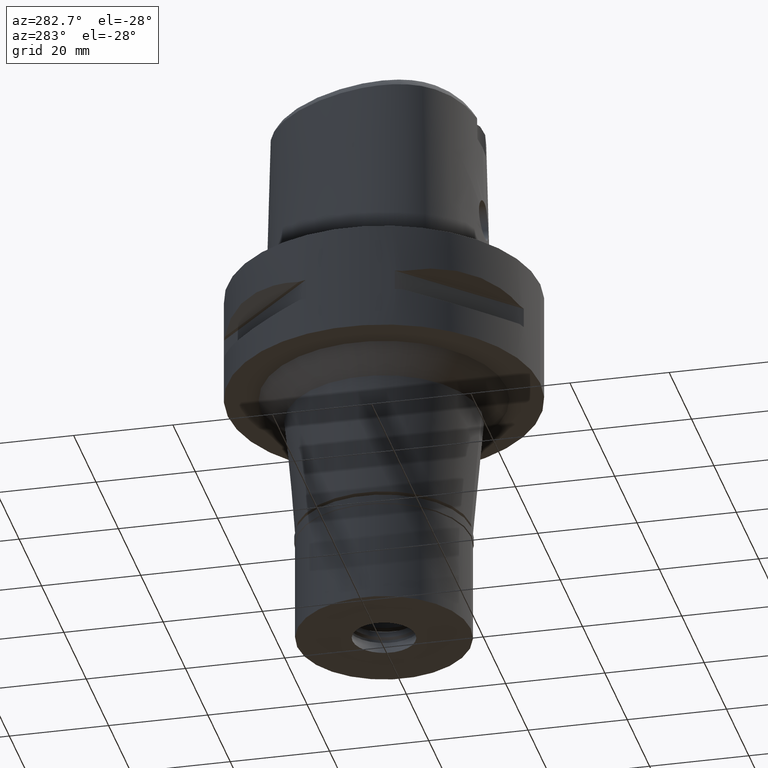
[diagram: clean part render]
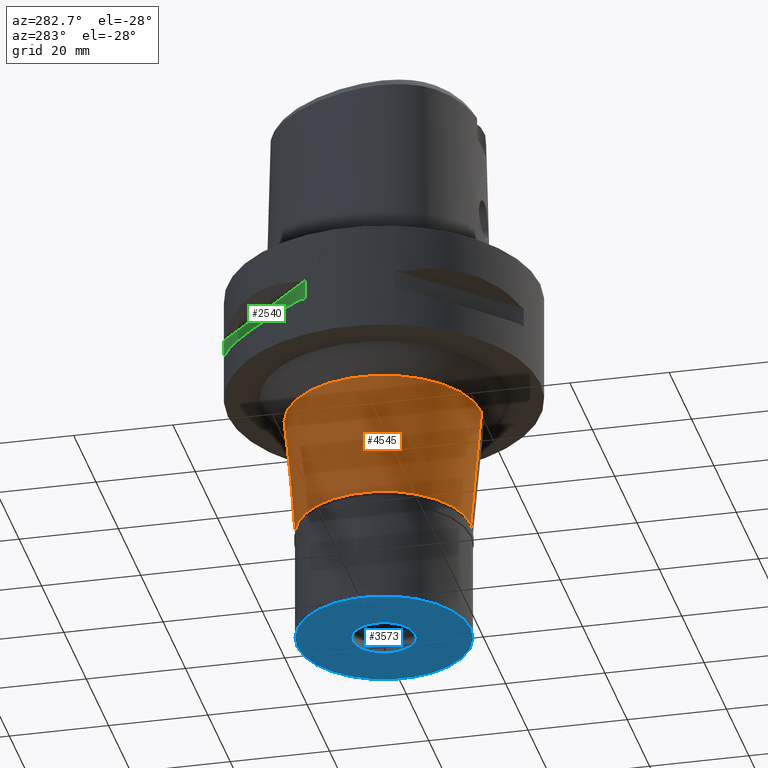
[diagram: same view with three faces highlighted in distinct colors, each labeled with its STEP entity id]
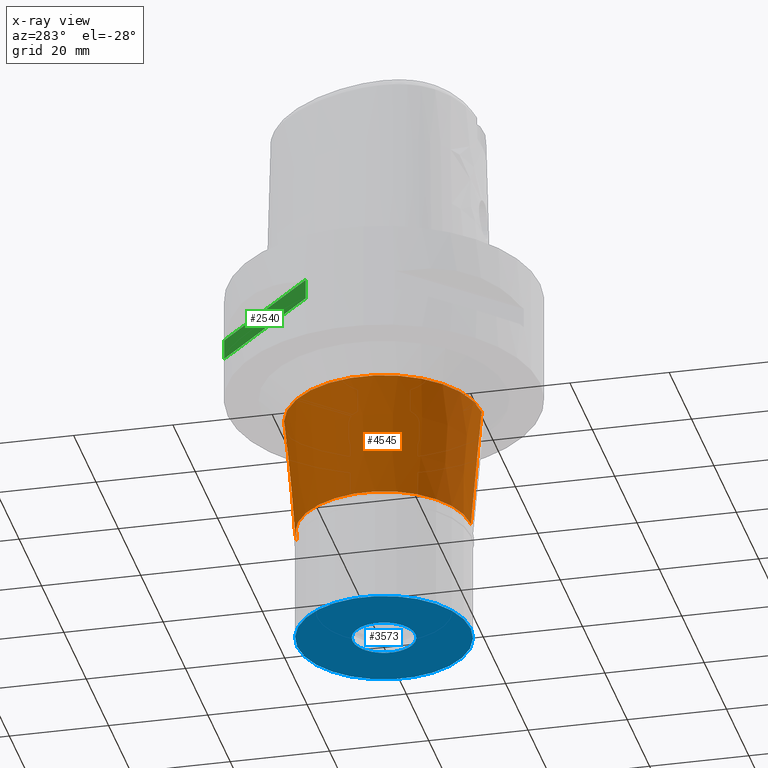
[diagram: x-ray of the same camera — body ghosted, the three highlighted faces saturated]
A machine part, auxiliary view with three faces highlighted in distinct colors.
The next image is the same camera in x-ray (body ghosted, the three faces saturated) — at least one of them is partly hidden behind the body in this view.
Their STEP definitions:

[orange] entity #4545 — the highlighted conical surface has half-angle 5 deg.
#21 = CARTESIAN_POINT ( 'NONE',  ( 0.0000000000000000000, 0.0000000000000000000, -51.70000000000000284 ) ) ;
#23 = FACE_OUTER_BOUND ( 'NONE', #1081, .T. ) ;
#117 = DIRECTION ( 'NONE',  ( 0.0000000000000000000, 0.0000000000000000000, -1.000000000000000000 ) ) ;
#134 = VERTEX_POINT ( 'NONE', #4239 ) ;
#261 = VECTOR ( 'NONE', #1185, 1000.000000000000000 ) ;
#509 = CIRCLE ( 'NONE', #2712, 19.66096998909000249 ) ;
#510 = VECTOR ( 'NONE', #2883, 1000.000000000000000 ) ;
#686 = CARTESIAN_POINT ( 'NONE',  ( 0.0000000000000000000, 19.66096998909000249, -27.00000000000000000 ) ) ;
#763 = ORIENTED_EDGE ( 'NONE', *, *, #4696, .T. ) ;
#875 = VERTEX_POINT ( 'NONE', #4195 ) ;
#1007 = AXIS2_PLACEMENT_3D ( 'NONE', #21, #4455, #1460 ) ;
#1081 = EDGE_LOOP ( 'NONE', ( #763, #4047, #3436, #2936 ) ) ;
#1152 = DIRECTION ( 'NONE',  ( 0.0000000000000000000, 1.000000000000000000, 0.0000000000000000000 ) ) ;
#1185 = DIRECTION ( 'NONE',  ( 0.0000000000000000000, 0.08715574274762423468, -0.9961946980917484318 ) ) ;
#1460 = DIRECTION ( 'NONE',  ( 0.0000000000000000000, 1.000000000000000000, 0.0000000000000000000 ) ) ;
#1879 = CONICAL_SURFACE ( 'NONE', #2041, 18.58048499454999813, 0.08726646259969973729 ) ;
#1986 = CARTESIAN_POINT ( 'NONE',  ( 0.0000000000000000000, 0.0000000000000000000, -27.00000000000000000 ) ) ;
#2041 = AXIS2_PLACEMENT_3D ( 'NONE', #3380, #4095, #1152 ) ;
#2058 = VERTEX_POINT ( 'NONE', #4151 ) ;
#2128 = LINE ( 'NONE', #3259, #510 ) ;
#2712 = AXIS2_PLACEMENT_3D ( 'NONE', #1986, #117, #3639 ) ;
#2777 = EDGE_CURVE ( 'NONE', #134, #2058, #4858, .T. ) ;
#2883 = DIRECTION ( 'NONE',  ( 0.0000000000000000000, -0.08715574274762423468, -0.9961946980917484318 ) ) ;
#2936 = ORIENTED_EDGE ( 'NONE', *, *, #3800, .T. ) ;
#3055 = CARTESIAN_POINT ( 'NONE',  ( 0.0000000000000000000, -19.66096998909000249, -27.00000000000000000 ) ) ;
#3080 = VERTEX_POINT ( 'NONE', #686 ) ;
#3199 = EDGE_CURVE ( 'NONE', #134, #3080, #509, .T. ) ;
#3259 = CARTESIAN_POINT ( 'NONE',  ( 0.0000000000000000000, 19.66096998909000249, -27.00000000000000000 ) ) ;
#3380 = CARTESIAN_POINT ( 'NONE',  ( 0.0000000000000000000, 0.0000000000000000000, -39.35000000000000142 ) ) ;
#3436 = ORIENTED_EDGE ( 'NONE', *, *, #3199, .T. ) ;
#3639 = DIRECTION ( 'NONE',  ( 0.0000000000000000000, -1.000000000000000000, 0.0000000000000000000 ) ) ;
#3800 = EDGE_CURVE ( 'NONE', #3080, #875, #2128, .T. ) ;
#4047 = ORIENTED_EDGE ( 'NONE', *, *, #2777, .F. ) ;
#4095 = DIRECTION ( 'NONE',  ( 0.0000000000000000000, 0.0000000000000000000, 1.000000000000000000 ) ) ;
#4151 = CARTESIAN_POINT ( 'NONE',  ( 0.0000000000000000000, -17.50000000000000000, -51.70000000000000284 ) ) ;
#4195 = CARTESIAN_POINT ( 'NONE',  ( 0.0000000000000000000, 17.50000000000000000, -51.70000000000000284 ) ) ;
#4239 = CARTESIAN_POINT ( 'NONE',  ( 0.0000000000000000000, -19.66096998909000249, -27.00000000000000000 ) ) ;
#4325 = CIRCLE ( 'NONE', #1007, 17.50000000000000000 ) ;
#4455 = DIRECTION ( 'NONE',  ( 0.0000000000000000000, 0.0000000000000000000, 1.000000000000000000 ) ) ;
#4545 = ADVANCED_FACE ( 'NONE', ( #23 ), #1879, .T. ) ;
#4696 = EDGE_CURVE ( 'NONE', #875, #2058, #4325, .T. ) ;
#4858 = LINE ( 'NONE', #3055, #261 ) ;

[blue] entity #3573 — the highlighted planar face has unit normal (0, 0, -1).
#191 = CIRCLE ( 'NONE', #2401, 6.349999999998999556 ) ;
#327 = CARTESIAN_POINT ( 'NONE',  ( 0.0000000000000000000, -6.349999999998999556, -22.50000000000000000 ) ) ;
#438 = DIRECTION ( 'NONE',  ( 0.0000000000000000000, 0.0000000000000000000, -1.000000000000000000 ) ) ;
#527 = VERTEX_POINT ( 'NONE', #4691 ) ;
#605 = CIRCLE ( 'NONE', #3286, 17.50000000000000000 ) ;
#700 = EDGE_CURVE ( 'NONE', #1930, #527, #605, .T. ) ;
#709 = CIRCLE ( 'NONE', #3775, 6.349999999998999556 ) ;
#729 = DIRECTION ( 'NONE',  ( 0.0000000000000000000, 1.000000000000000000, 0.0000000000000000000 ) ) ;
#799 = ORIENTED_EDGE ( 'NONE', *, *, #4743, .F. ) ;
#863 = CIRCLE ( 'NONE', #4713, 17.50000000000000000 ) ;
#986 = DIRECTION ( 'NONE',  ( 0.0000000000000000000, 0.0000000000000000000, -1.000000000000000000 ) ) ;
#1073 = CARTESIAN_POINT ( 'NONE',  ( 0.0000000000000000000, 0.0000000000000000000, -22.50000000000000000 ) ) ;
#1092 = CARTESIAN_POINT ( 'NONE',  ( 0.0000000000000000000, 0.0000000000000000000, -22.50000000000000000 ) ) ;
#1109 = CARTESIAN_POINT ( 'NONE',  ( 0.0000000000000000000, 6.349999999998999556, -22.50000000000000000 ) ) ;
#1348 = FACE_BOUND ( 'NONE', #2914, .T. ) ;
#1930 = VERTEX_POINT ( 'NONE', #2050 ) ;
#2050 = CARTESIAN_POINT ( 'NONE',  ( 0.0000000000000000000, 17.50000000000000000, -22.50000000000000000 ) ) ;
#2296 = DIRECTION ( 'NONE',  ( 0.0000000000000000000, 0.0000000000000000000, 1.000000000000000000 ) ) ;
#2401 = AXIS2_PLACEMENT_3D ( 'NONE', #2704, #438, #3472 ) ;
#2479 = CARTESIAN_POINT ( 'NONE',  ( 0.0000000000000000000, 0.0000000000000000000, -22.50000000000000000 ) ) ;
#2527 = ORIENTED_EDGE ( 'NONE', *, *, #4750, .F. ) ;
#2589 = EDGE_LOOP ( 'NONE', ( #4752, #799 ) ) ;
#2628 = VERTEX_POINT ( 'NONE', #327 ) ;
#2704 = CARTESIAN_POINT ( 'NONE',  ( 0.0000000000000000000, 0.0000000000000000000, -22.50000000000000000 ) ) ;
#2864 = VERTEX_POINT ( 'NONE', #1109 ) ;
#2914 = EDGE_LOOP ( 'NONE', ( #2527, #4792 ) ) ;
#2947 = AXIS2_PLACEMENT_3D ( 'NONE', #2479, #986, #4273 ) ;
#3286 = AXIS2_PLACEMENT_3D ( 'NONE', #1092, #4030, #729 ) ;
#3439 = EDGE_CURVE ( 'NONE', #2628, #2864, #191, .T. ) ;
#3472 = DIRECTION ( 'NONE',  ( 0.0000000000000000000, -1.000000000000000000, 0.0000000000000000000 ) ) ;
#3573 = ADVANCED_FACE ( 'NONE', ( #4323, #1348 ), #3934, .T. ) ;
#3719 = DIRECTION ( 'NONE',  ( 0.0000000000000000000, 1.000000000000000000, 0.0000000000000000000 ) ) ;
#3768 = DIRECTION ( 'NONE',  ( 0.0000000000000000000, -1.000000000000000000, 0.0000000000000000000 ) ) ;
#3775 = AXIS2_PLACEMENT_3D ( 'NONE', #4482, #4505, #3719 ) ;
#3934 = PLANE ( 'NONE',  #2947 ) ;
#4030 = DIRECTION ( 'NONE',  ( 0.0000000000000000000, 0.0000000000000000000, 1.000000000000000000 ) ) ;
#4273 = DIRECTION ( 'NONE',  ( 0.0000000000000000000, -1.000000000000000000, 0.0000000000000000000 ) ) ;
#4323 = FACE_OUTER_BOUND ( 'NONE', #2589, .T. ) ;
#4482 = CARTESIAN_POINT ( 'NONE',  ( 0.0000000000000000000, 0.0000000000000000000, -22.50000000000000000 ) ) ;
#4505 = DIRECTION ( 'NONE',  ( 0.0000000000000000000, 0.0000000000000000000, -1.000000000000000000 ) ) ;
#4691 = CARTESIAN_POINT ( 'NONE',  ( 0.0000000000000000000, -17.50000000000000000, -22.50000000000000000 ) ) ;
#4713 = AXIS2_PLACEMENT_3D ( 'NONE', #1073, #2296, #3768 ) ;
#4743 = EDGE_CURVE ( 'NONE', #527, #1930, #863, .T. ) ;
#4750 = EDGE_CURVE ( 'NONE', #2864, #2628, #709, .T. ) ;
#4752 = ORIENTED_EDGE ( 'NONE', *, *, #700, .F. ) ;
#4792 = ORIENTED_EDGE ( 'NONE', *, *, #3439, .F. ) ;

[green] entity #2540 — the highlighted planar face has unit normal (0.7071, -0.7071, 0).
#91 = EDGE_CURVE ( 'NONE', #102, #2786, #1990, .T. ) ;
#102 = VERTEX_POINT ( 'NONE', #3216 ) ;
#160 = DIRECTION ( 'NONE',  ( -0.7071067811865474617, -0.7071067811865474617, 0.0000000000000000000 ) ) ;
#284 = DIRECTION ( 'NONE',  ( 0.0000000000000000000, 0.0000000000000000000, 1.000000000000000000 ) ) ;
#405 = ORIENTED_EDGE ( 'NONE', *, *, #3658, .F. ) ;
#595 = DIRECTION ( 'NONE',  ( 0.7071067811865475727, -0.7071067811865475727, 0.0000000000000000000 ) ) ;
#599 = VECTOR ( 'NONE', #284, 1000.000000000000000 ) ;
#694 = ORIENTED_EDGE ( 'NONE', *, *, #91, .T. ) ;
#744 = DIRECTION ( 'NONE',  ( 0.0000000000000000000, 0.0000000000000000000, -1.000000000000000000 ) ) ;
#793 = LINE ( 'NONE', #813, #3566 ) ;
#813 = CARTESIAN_POINT ( 'NONE',  ( -8.981198972017999438, 30.19251670572000279, -9.950000000000001066 ) ) ;
#890 = CARTESIAN_POINT ( 'NONE',  ( -30.19251670572000279, 8.981198972017999438, -14.05000000000000071 ) ) ;
#914 = CARTESIAN_POINT ( 'NONE',  ( -8.981198972019999616, 30.19251670572000279, -9.950000000000001066 ) ) ;
#1588 = EDGE_CURVE ( 'NONE', #1704, #102, #3139, .T. ) ;
#1704 = VERTEX_POINT ( 'NONE', #2154 ) ;
#1721 = CARTESIAN_POINT ( 'NONE',  ( -8.981198972017999438, 30.19251670572000279, -9.950000000000001066 ) ) ;
#1878 = EDGE_LOOP ( 'NONE', ( #405, #2909, #4690, #694 ) ) ;
#1990 = LINE ( 'NONE', #890, #599 ) ;
#2100 = DIRECTION ( 'NONE',  ( 0.0000000000000000000, 0.0000000000000000000, -1.000000000000000000 ) ) ;
#2154 = CARTESIAN_POINT ( 'NONE',  ( -8.981198972017999438, 30.19251670572000279, -14.05000000000000071 ) ) ;
#2380 = EDGE_CURVE ( 'NONE', #2932, #1704, #793, .T. ) ;
#2385 = CARTESIAN_POINT ( 'NONE',  ( -8.981198972017999438, 30.19251670572000279, -14.05000000000000071 ) ) ;
#2411 = FACE_OUTER_BOUND ( 'NONE', #1878, .T. ) ;
#2481 = VECTOR ( 'NONE', #160, 1000.000000000000114 ) ;
#2540 = ADVANCED_FACE ( 'NONE', ( #2411 ), #3909, .F. ) ;
#2786 = VERTEX_POINT ( 'NONE', #4171 ) ;
#2909 = ORIENTED_EDGE ( 'NONE', *, *, #2380, .T. ) ;
#2932 = VERTEX_POINT ( 'NONE', #914 ) ;
#3139 = LINE ( 'NONE', #2385, #4864 ) ;
#3216 = CARTESIAN_POINT ( 'NONE',  ( -30.19251670572000279, 8.981198972019999616, -14.05000000000000071 ) ) ;
#3253 = AXIS2_PLACEMENT_3D ( 'NONE', #4730, #595, #2100 ) ;
#3473 = DIRECTION ( 'NONE',  ( -0.7071067811865474617, -0.7071067811865474617, 0.0000000000000000000 ) ) ;
#3566 = VECTOR ( 'NONE', #744, 1000.000000000000000 ) ;
#3658 = EDGE_CURVE ( 'NONE', #2932, #2786, #4733, .T. ) ;
#3909 = PLANE ( 'NONE',  #3253 ) ;
#4171 = CARTESIAN_POINT ( 'NONE',  ( -30.19251670572000279, 8.981198972017999438, -9.950000000000001066 ) ) ;
#4690 = ORIENTED_EDGE ( 'NONE', *, *, #1588, .T. ) ;
#4730 = CARTESIAN_POINT ( 'NONE',  ( -33.72899346260000186, 5.444722215136000187, -9.950000000000001066 ) ) ;
#4733 = LINE ( 'NONE', #1721, #2481 ) ;
#4864 = VECTOR ( 'NONE', #3473, 1000.000000000000114 ) ;